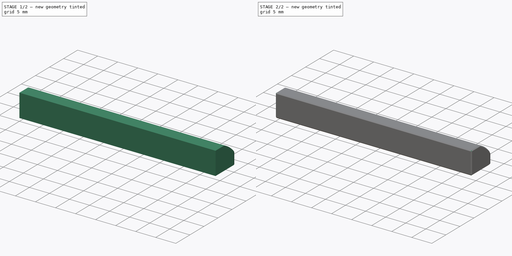
[diagram: build sequence overview — one tinted view per stage of 2, left to right]
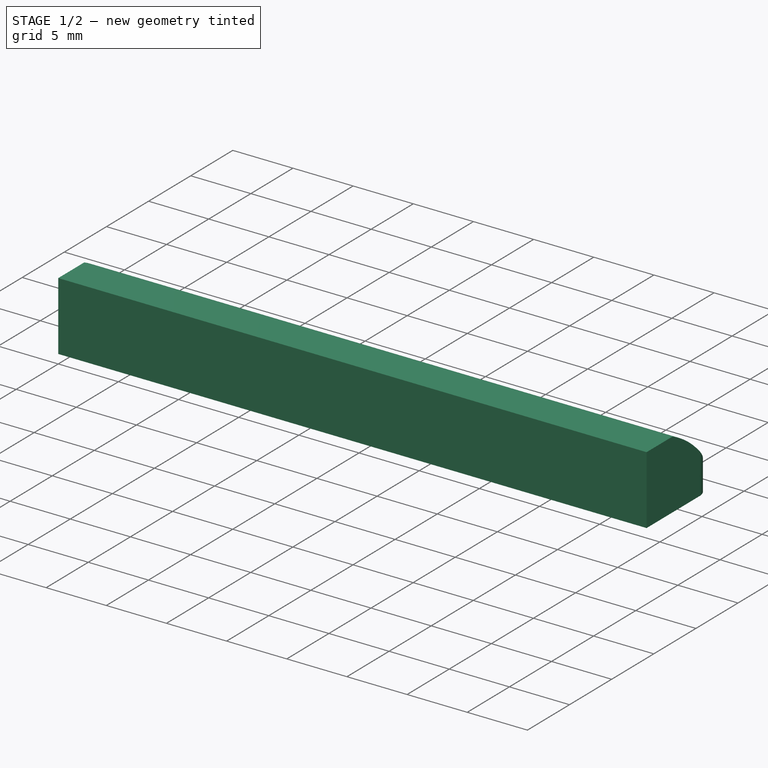
[diagram: stage 1 of 2 — iso view after this stage's code; geometry added in this stage tinted green]
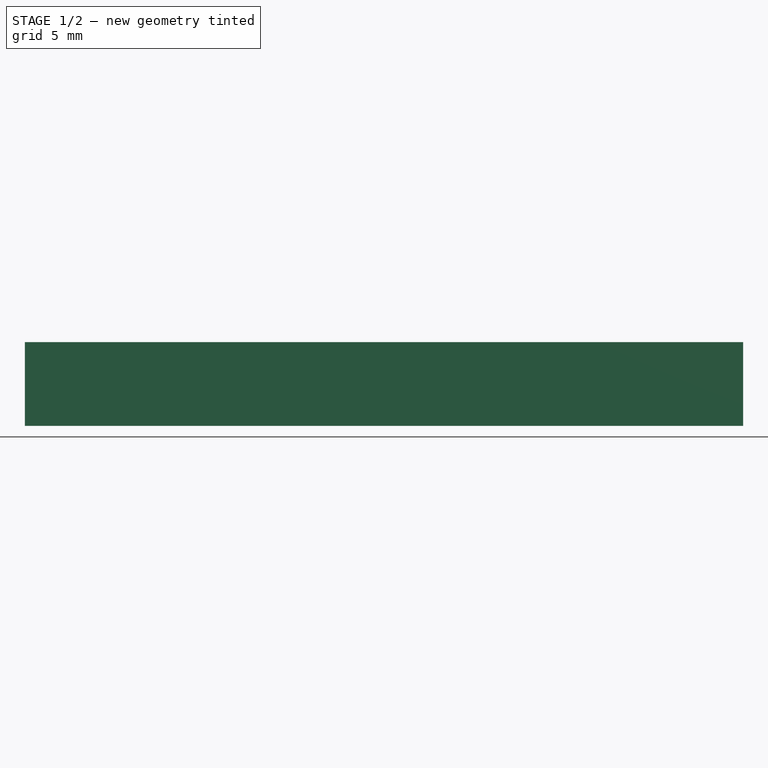
[diagram: stage 1 of 2 — front view after this stage's code; geometry added in this stage tinted green]
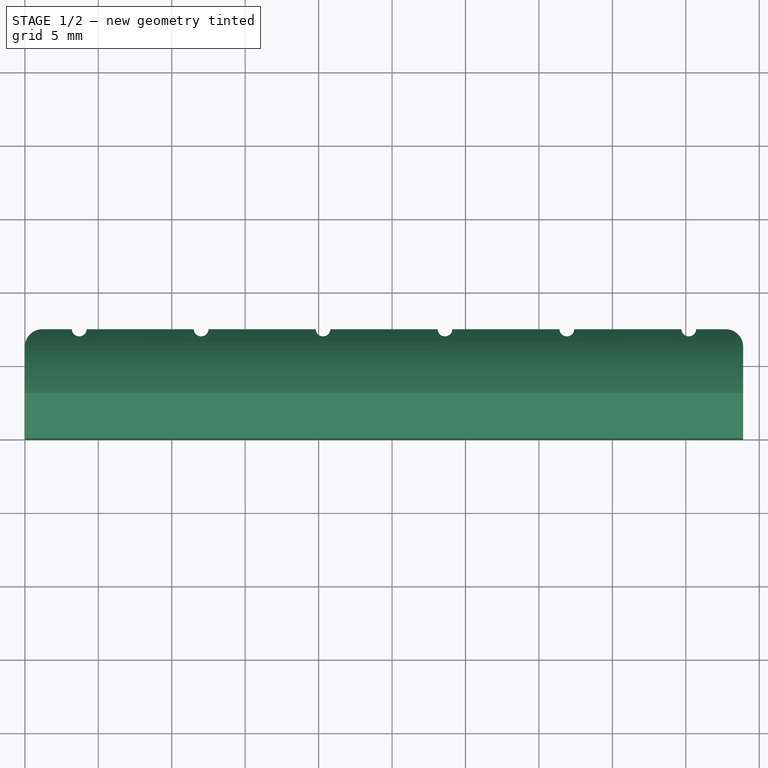
[diagram: stage 1 of 2 — top view after this stage's code; geometry added in this stage tinted green]
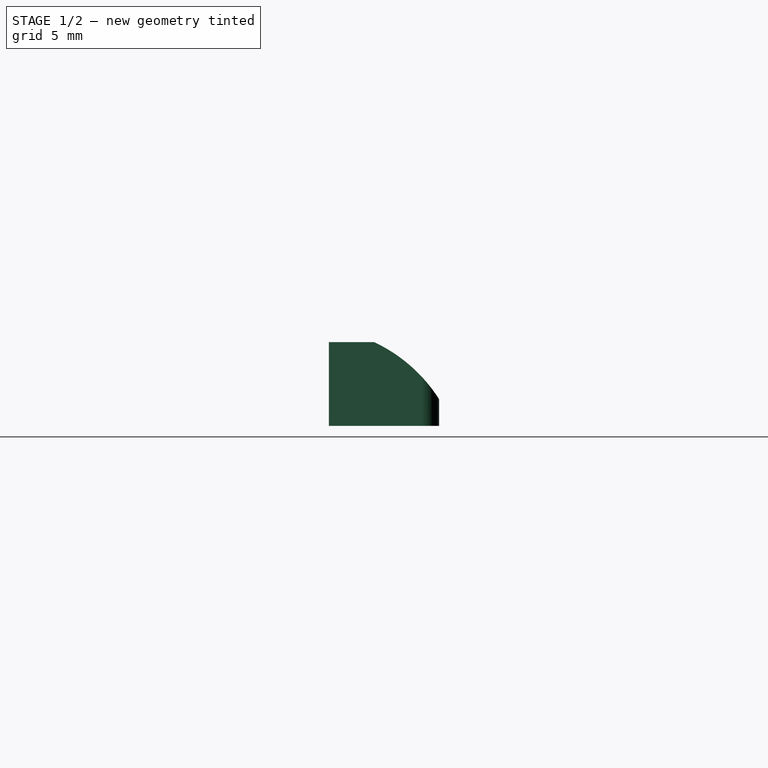
[diagram: stage 1 of 2 — right view after this stage's code; geometry added in this stage tinted green]
FCSTD DOCUMENT  (FreeCAD 1.0R39319 (Git))
Label: Classical_guitar_saddle
License: All rights reserved
LicenseURL: https://en.wikipedia.org/wiki/All_rights_reserved
objects: Sketcher::SketchObject×2, Spreadsheet::Sheet×1, PartDesign::Pad×1, PartDesign::Pocket×1, PartDesign::Chamfer×1, PartDesign::Body×1
note: 14 computed .brp shape members not serialized (recipe doc carries the construction recipe); baked Part::Feature solids carry a one-line shape summary decoded from their .brp

FEATURE [Spreadsheet::Sheet] Spreadsheet
  cells = A1='string thicness; B1='spacing; C1='saddle_width; D1='saddle_height; E1='saddle_thickness; A2=1; B2(string_spacing)=8.3; C2(saddle_width)=48.9; D2(saddle_height)=7.5; E2(saddle_thickness)=5.7; A3=1; A4=1; A5=1; A6=1; A7=1
FEATURE [Sketcher::SketchObject] Sketch
  ArcFitTolerance = 1e-06
  AttachmentSupport = -> [XY_Plane]
  FullyConstrained = true
  MakeInternals = false
  MapMode = 5
  expr: Constraints[58] = Spreadsheet.saddle_height
  expr: Constraints[59] = Spreadsheet.A2
  expr: Constraints[60] = Spreadsheet.A3
  expr: Constraints[61] = Spreadsheet.A4
  expr: Constraints[62] = Spreadsheet.A5
  expr: Constraints[63] = Spreadsheet.A6
  expr: Constraints[64] = Spreadsheet.A7
  expr: Constraints[65] = Spreadsheet.saddle_width
  expr: Constraints[66] = Spreadsheet.string_spacing
  sketch-geometry (24):
    g0: LineSegment StartX=0 StartY=0 StartZ=0 EndX=48.9 EndY=0 EndZ=0
    g1: LineSegment StartX=48.9 StartY=0 StartZ=0 EndX=48.9 EndY=6.3 EndZ=0
    g2: LineSegment StartX=0 StartY=0 StartZ=0 EndX=1.301e-13 EndY=6.3 EndZ=0
    g3: ArcOfCircle CenterX=1.2 CenterY=6.3 CenterZ=0 NormalX=0 NormalY=0 NormalZ=1 AngleXU=0 Radius=1.2 StartAngle=1.5708 EndAngle=3.14159
    g4: ArcOfCircle CenterX=47.7 CenterY=6.3 CenterZ=0 NormalX=0 NormalY=0 NormalZ=1 AngleXU=0 Radius=1.2 StartAngle=1.49e-14 EndAngle=1.5708
    g5: ArcOfCircle CenterX=3.7 CenterY=7.5 CenterZ=0 NormalX=0 NormalY=0 NormalZ=1 AngleXU=0 Radius=0.5 StartAngle=3.14159 EndAngle=6.28319
    g6: ArcOfCircle CenterX=12 CenterY=7.5 CenterZ=0 NormalX=0 NormalY=0 NormalZ=1 AngleXU=0 Radius=0.5 StartAngle=3.14159 EndAngle=6.28319
    g7: ArcOfCircle CenterX=20.3 CenterY=7.5 CenterZ=0 NormalX=0 NormalY=0 NormalZ=1 AngleXU=0 Radius=0.5 StartAngle=3.14159 EndAngle=6.28319
    g8: ArcOfCircle CenterX=28.6 CenterY=7.5 CenterZ=0 NormalX=0 NormalY=0 NormalZ=1 AngleXU=0 Radius=0.5 StartAngle=3.14159 EndAngle=6.28319
    g9: ArcOfCircle CenterX=36.9 CenterY=7.5 CenterZ=0 NormalX=0 NormalY=0 NormalZ=1 AngleXU=0 Radius=0.5 StartAngle=3.14159 EndAngle=6.28319
    g10: ArcOfCircle CenterX=45.2 CenterY=7.5 CenterZ=0 NormalX=0 NormalY=0 NormalZ=1 AngleXU=0 Radius=0.5 StartAngle=3.14159 EndAngle=6.28319
    g11: LineSegment StartX=1.2 StartY=7.5 StartZ=0 EndX=3.2 EndY=7.5 EndZ=0
    g12: LineSegment StartX=4.2 StartY=7.5 StartZ=0 EndX=11.5 EndY=7.5 EndZ=0
    g13: LineSegment StartX=12.5 StartY=7.5 StartZ=0 EndX=19.8 EndY=7.5 EndZ=0
    g14: LineSegment StartX=20.8 StartY=7.5 StartZ=0 EndX=28.1 EndY=7.5 EndZ=0
    g15: LineSegment StartX=29.1 StartY=7.5 StartZ=0 EndX=36.4 EndY=7.5 EndZ=0
    g16: LineSegment StartX=37.4 StartY=7.5 StartZ=0 EndX=44.7 EndY=7.5 EndZ=0
    g17: LineSegment StartX=45.7 StartY=7.5 StartZ=0 EndX=47.7 EndY=7.5 EndZ=0
    g18: LineSegment [constr] StartX=24.45 StartY=7.5 StartZ=0 EndX=24.45 EndY=0 EndZ=0
    g19: LineSegment [constr] StartX=20.3 StartY=7.5 StartZ=0 EndX=12 EndY=7.5 EndZ=0
    g20: LineSegment [constr] StartX=3.7 StartY=7.5 StartZ=0 EndX=12 EndY=7.5 EndZ=0
    g21: LineSegment [constr] StartX=36.9 StartY=7.5 StartZ=0 EndX=28.6 EndY=7.5 EndZ=0
    g22: LineSegment [constr] StartX=36.9 StartY=7.5 StartZ=0 EndX=45.2 EndY=7.5 EndZ=0
    g23: LineSegment [constr] StartX=20.3 StartY=7.5 StartZ=0 EndX=28.6 EndY=7.5 EndZ=0
  constraints (69):
    c: Coincident(g0,g-1)
    c: PointOnObject(g0,g-1)
    c: Coincident(g1,g0)
    c: Vertical(g1)
    c: Coincident(g2,g0)
    c: PointOnObject(g2,g-2)
    c: Horizontal(g5,g5)
    c: Horizontal(g5,g5)
    c: Horizontal(g5,g6)
    c: Horizontal(g6,g6)
    c: Horizontal(g6,g6)
    c: Horizontal(g6,g7)
    c: Horizontal(g7,g7)
    c: Horizontal(g7,g7)
    c: Horizontal(g7,g8)
    c: Horizontal(g8,g3)
    c: Horizontal(g3,g8)
    c: Horizontal(g8,g8)
    c: Horizontal(g8,g9)
    c: Horizontal(g9,g9)
    c: Horizontal(g9,g9)
    c: Horizontal(g9,g10)
    c: Horizontal(g10,g10)
    c: Horizontal(g10,g10)
    c: Horizontal(g10,g4)
    c: Coincident(g11,g5)
    c: Coincident(g12,g5)
    c: Coincident(g12,g6)
    c: Coincident(g13,g6)
    c: Coincident(g13,g7)
    c: Coincident(g14,g7)
    c: Coincident(g14,g8)
    c: Coincident(g15,g8)
    c: Coincident(g15,g9)
    c: Coincident(g16,g9)
    c: Coincident(g16,g10)
    c: Coincident(g17,g10)
    c: Symmetric(g14,g14,g18)
    c: Symmetric(g0,g0,g18)
    c: Vertical(g18)
    c: Coincident(g19,g7)
    c: Coincident(g19,g6)
    c: Coincident(g20,g5)
    c: Coincident(g20,g6)
    c: Coincident(g21,g9)
    c: Coincident(g21,g8)
    c: Coincident(g22,g9)
    c: Coincident(g22,g10)
    c: Coincident(g23,g7)
    c: Coincident(g23,g8)
    c: Equal(g22,g21)
    c: Equal(g21,g23)
    c: Equal(g23,g19)
    c: Equal(g19,g20)
    c: Tangent(g17,g4) = 1.5708
    c: Tangent(g11,g3) = 1.5708
    c: Tangent(g3,g2) = 1.5708
    c: Tangent(g4,g1) = -1.5708
    c: DistanceY(g0,g5) = 7.5
    c: Diameter(g5) = 1
    c: Diameter(g6) = 1
    c: Diameter(g7) = 1
    c: Diameter(g8) = 1
    c: Diameter(g9) = 1
    c: Diameter(g10) = 1
    c: DistanceX(g0,g0) = 48.9
    c: DistanceX(g20,g20) = 8.3
    c: Equal(g3,g4)
    c: Radius(g3) = 1.2
FEATURE [PartDesign::Pad] Pad
  Direction = (0,0,1)
  Length = 5.7
  Length2 = 10
  Profile = -> Sketch
  ReferenceAxis = -> Sketch [N_Axis]
  Refine = true
  Suppressed = false
  Type = 0
  expr: Length = Spreadsheet.saddle_thickness
FEATURE [Sketcher::SketchObject] Sketch001
  ArcFitTolerance = 1e-06
  AttachmentSupport = -> [Pad]
  FullyConstrained = true
  MakeInternals = false
  MapMode = 5
  Placement = pos=(48.9,0,0) rot=(0.57735,0.57735,0.57735;2.0944rad)
  expr: Constraints[9] = Spreadsheet.saddle_thickness + 0.9
  sketch-geometry (3):
    g0: ArcOfCircle CenterX=-1.36 CenterY=-3.8 CenterZ=0 NormalX=0 NormalY=0 NormalZ=1 AngleXU=0 Radius=10.4885 StartAngle=0.370734 EndAngle=1.44076
    g1: LineSegment StartX=-2e-16 StartY=6.6 StartZ=0 EndX=8.41597 EndY=6.6 EndZ=0
    g2: LineSegment StartX=8.41597 StartY=0 StartZ=0 EndX=8.41597 EndY=6.6 EndZ=0
  constraints (10):
    c: DistanceY(g0,g-1) = 3.8
    c: DistanceX(g0,g-1) = 1.36
    c: Coincident(g1,g0)
    c: Horizontal(g1)
    c: Coincident(g2,g0)
    c: Vertical(g2)
    c: Coincident(g2,g1)
    c: PointOnObject(g0,g-2)
    c: PointOnObject(g0,g-1)
    c: DistanceY(g-1,g0) = 6.6
FEATURE [PartDesign::Pocket] Pocket
  BaseFeature = -> Pad
  Direction = (-1,0,0)
  Length = 48.9
  Length2 = 5
  Profile = -> Sketch001
  ReferenceAxis = -> Sketch001 [N_Axis]
  Refine = true
  Suppressed = false
  Type = 0
  expr: Length = Spreadsheet.saddle_width
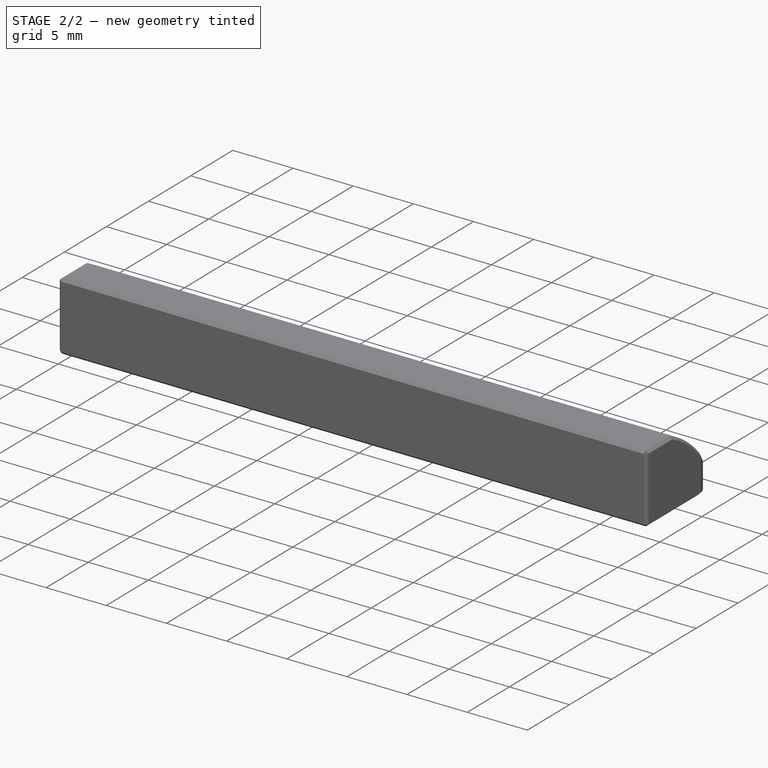
[diagram: stage 2 of 2 — iso view after this stage's code; geometry added in this stage tinted green]
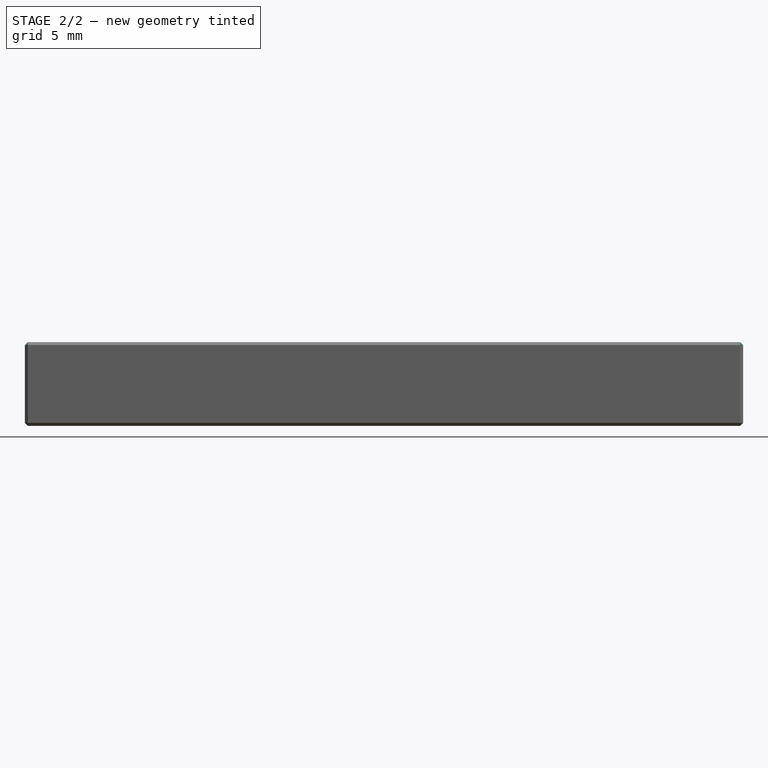
[diagram: stage 2 of 2 — front view after this stage's code; geometry added in this stage tinted green]
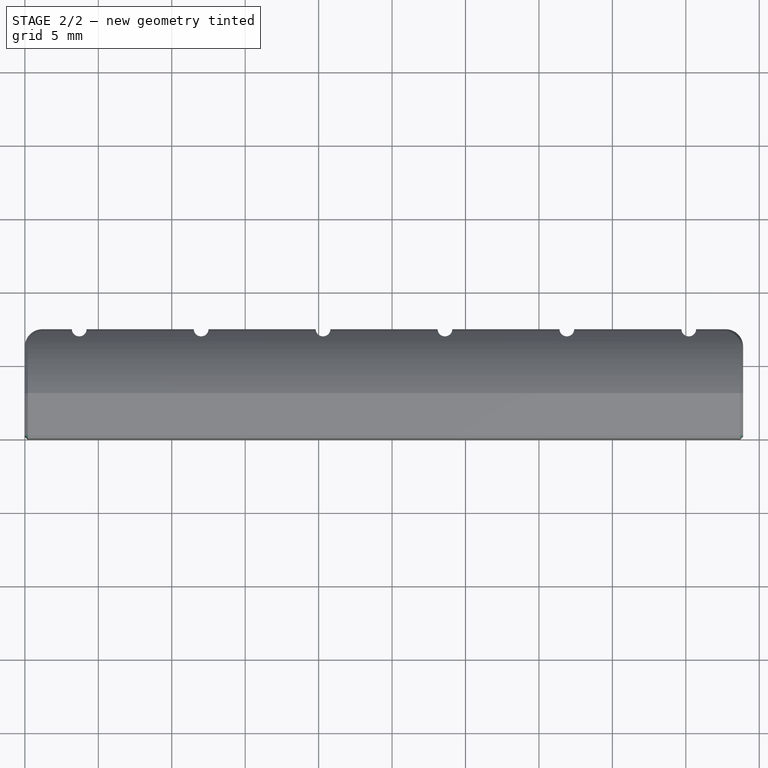
[diagram: stage 2 of 2 — top view after this stage's code; geometry added in this stage tinted green]
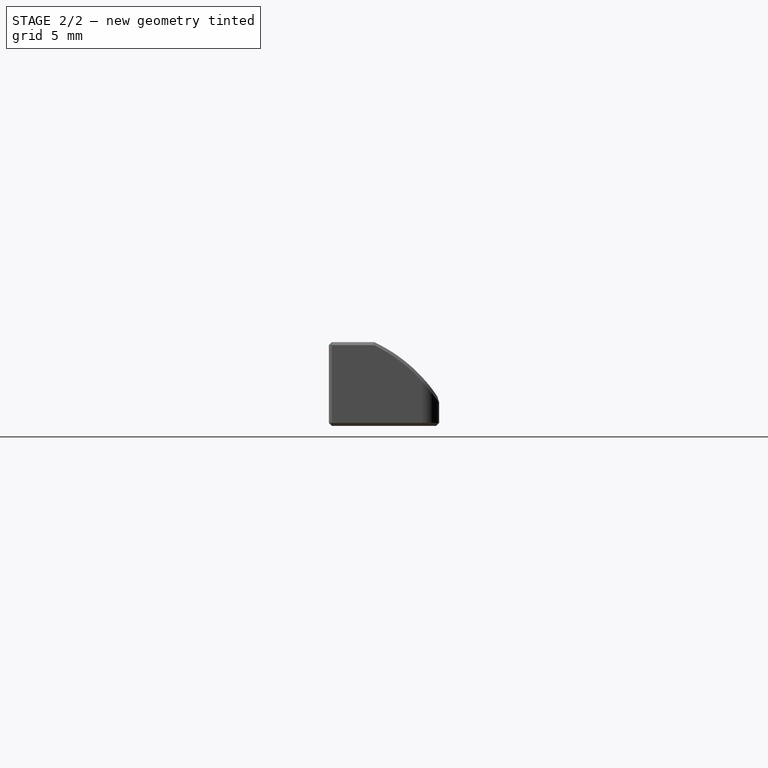
[diagram: stage 2 of 2 — right view after this stage's code; geometry added in this stage tinted green]
FEATURE [PartDesign::Chamfer] Chamfer
  Angle = 45
  Base = -> Pocket [Edge8,Edge7,Edge6,Edge20,Edge18,Edge16,Edge14,Edge12,Edge26,Edge28,Edge30,Edge32,Edge34,Edge36,Edge38,Edge44,Edge46,Edge41,Edge24,Edge42,Edge43]
  BaseFeature = -> Pocket
  ChamferType = 0
  FlipDirection = false
  Refine = true
  Size = 0.2
  Size2 = 1
  SupportTransform = false
  Suppressed = false
  UseAllEdges = false
FEATURE [PartDesign::Body] Body
  AllowCompound = false
  Group = -> [Sketch,Pad,Sketch001,Pocket,Chamfer]
  Origin = -> Origin
  Tip = -> Chamfer
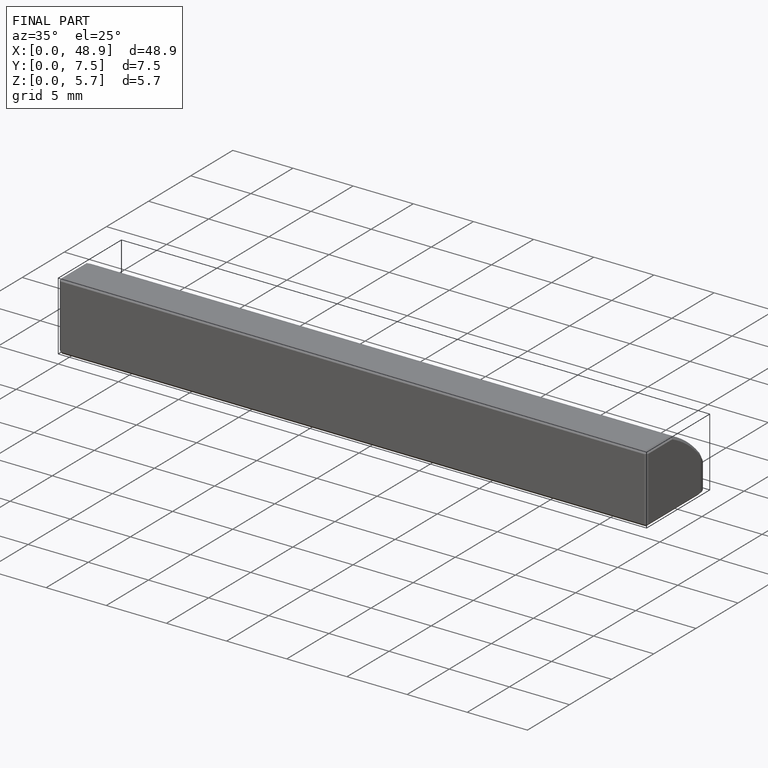
[diagram: finished part — iso view with bounding-box wireframe]
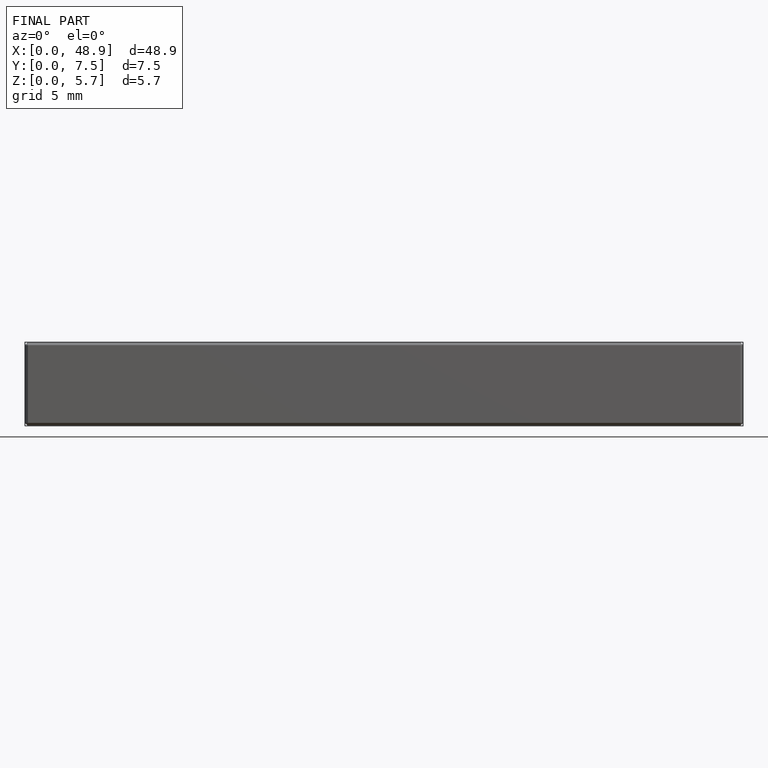
[diagram: finished part — front view with bounding-box wireframe]
